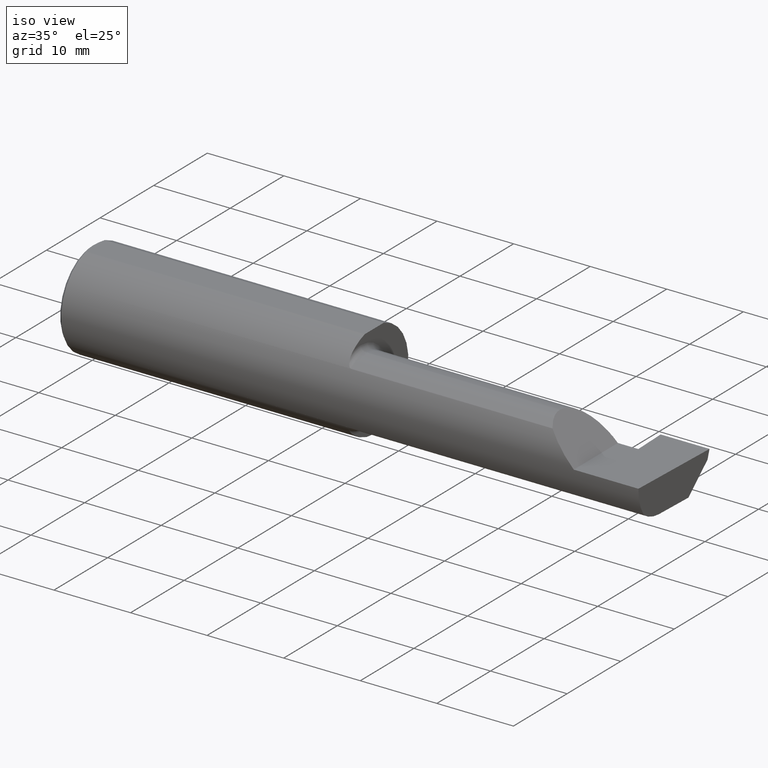
[diagram: clean part render]
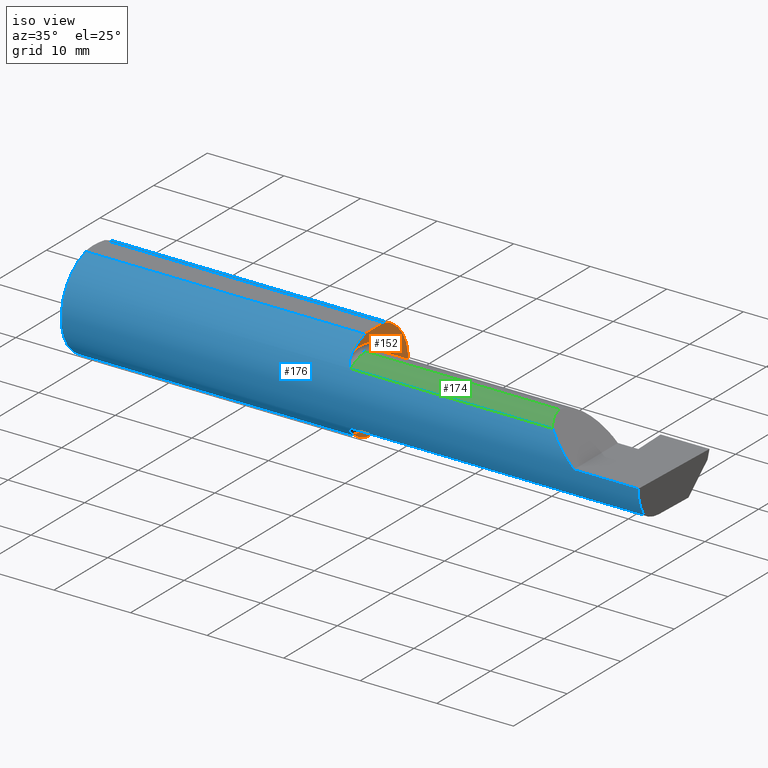
[diagram: same view with three faces highlighted in distinct colors, each labeled with its STEP entity id]
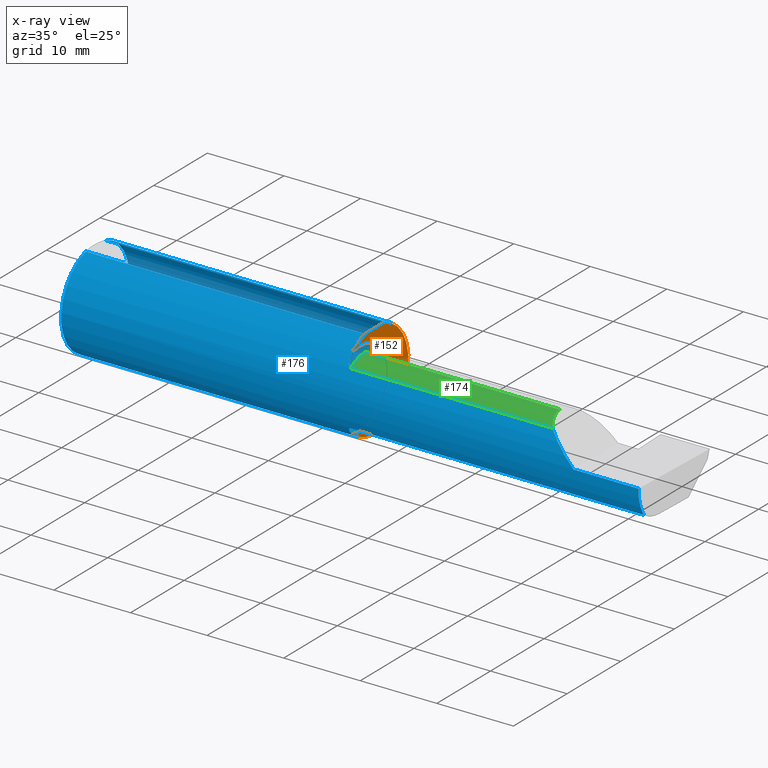
[diagram: x-ray of the same camera — body ghosted, the three highlighted faces saturated]
A machine part, iso view with three faces highlighted in distinct colors.
The next image is the same camera in x-ray (body ghosted, the three faces saturated) — at least one of them is partly hidden behind the body in this view.
Their STEP definitions:

[orange] entity #152 — the highlighted planar face has unit normal (1, 0, 0).
#3 = VERTEX_POINT ( 'NONE', #588 ) ;
#7 = ORIENTED_EDGE ( 'NONE', *, *, #798, .T. ) ;
#29 = EDGE_CURVE ( 'NONE', #142, #716, #241, .T. ) ;
#63 = FACE_OUTER_BOUND ( 'NONE', #580, .T. ) ;
#75 = DIRECTION ( 'NONE',  ( -1.000000000000000000, -0.000000000000000000, -0.000000000000000000 ) ) ;
#79 = CARTESIAN_POINT ( 'NONE',  ( 1.449999999999999512, -0.1616050818046604332, 0.1905487340154980169 ) ) ;
#80 = CIRCLE ( 'NONE', #326, 0.1999999999999999833 ) ;
#81 = CARTESIAN_POINT ( 'NONE',  ( 1.450000000000000178, -0.2498499999999999888, 0.2398500000000000076 ) ) ;
#84 = AXIS2_PLACEMENT_3D ( 'NONE', #255, #495, #419 ) ;
#94 = AXIS2_PLACEMENT_3D ( 'NONE', #284, #470, #347 ) ;
#107 = EDGE_CURVE ( 'NONE', #3, #262, #511, .T. ) ;
#129 = CARTESIAN_POINT ( 'NONE',  ( 1.450000000000000178, 0.06997856814768360634, 0.2398500000000000076 ) ) ;
#141 = CARTESIAN_POINT ( 'NONE',  ( 1.449999999999999512, -0.1616050818046604332, -0.1905487340154980169 ) ) ;
#142 = VERTEX_POINT ( 'NONE', #429 ) ;
#152 = ADVANCED_FACE ( 'NONE', ( #63 ), #536, .T. ) ;
#192 = CARTESIAN_POINT ( 'NONE',  ( 1.449999999999999734, -0.1008499999999999674, 0.000000000000000000 ) ) ;
#198 = VECTOR ( 'NONE', #450, 39.37007874015748143 ) ;
#210 = AXIS2_PLACEMENT_3D ( 'NONE', #363, #298, #492 ) ;
#241 = CIRCLE ( 'NONE', #94, 0.2498499999999999888 ) ;
#255 = CARTESIAN_POINT ( 'NONE',  ( 1.450000000000000178, 0.2741499999999998938, 0.000000000000000000 ) ) ;
#262 = VERTEX_POINT ( 'NONE', #141 ) ;
#284 = CARTESIAN_POINT ( 'NONE',  ( 1.450000000000000178, 0.000000000000000000, 0.000000000000000000 ) ) ;
#298 = DIRECTION ( 'NONE',  ( -1.000000000000000000, -0.000000000000000000, -0.000000000000000000 ) ) ;
#301 = CIRCLE ( 'NONE', #711, 0.1999999999999999833 ) ;
#302 = EDGE_CURVE ( 'NONE', #142, #686, #501, .T. ) ;
#326 = AXIS2_PLACEMENT_3D ( 'NONE', #355, #454, #718 ) ;
#327 = ORIENTED_EDGE ( 'NONE', *, *, #784, .T. ) ;
#347 = DIRECTION ( 'NONE',  ( 0.000000000000000000, 0.000000000000000000, -1.000000000000000000 ) ) ;
#350 = CARTESIAN_POINT ( 'NONE',  ( 1.450000000000000178, 0.000000000000000000, 0.000000000000000000 ) ) ;
#355 = CARTESIAN_POINT ( 'NONE',  ( 1.449999999999999734, -0.1008499999999999674, 0.000000000000000000 ) ) ;
#363 = CARTESIAN_POINT ( 'NONE',  ( 1.449999999999999734, -0.1008499999999999674, 0.000000000000000000 ) ) ;
#398 = EDGE_CURVE ( 'NONE', #572, #3, #80, .T. ) ;
#404 = ORIENTED_EDGE ( 'NONE', *, *, #107, .T. ) ;
#419 = DIRECTION ( 'NONE',  ( 0.000000000000000000, 0.000000000000000000, -1.000000000000000000 ) ) ;
#429 = CARTESIAN_POINT ( 'NONE',  ( 1.450000000000000178, -0.06997856814768374512, 0.2398500000000000076 ) ) ;
#438 = ORIENTED_EDGE ( 'NONE', *, *, #302, .F. ) ;
#448 = ORIENTED_EDGE ( 'NONE', *, *, #29, .T. ) ;
#450 = DIRECTION ( 'NONE',  ( -0.000000000000000000, 1.000000000000000000, 0.000000000000000000 ) ) ;
#454 = DIRECTION ( 'NONE',  ( -1.000000000000000000, -0.000000000000000000, -0.000000000000000000 ) ) ;
#470 = DIRECTION ( 'NONE',  ( 1.000000000000000000, 0.000000000000000000, 0.000000000000000000 ) ) ;
#492 = DIRECTION ( 'NONE',  ( 0.000000000000000000, 0.000000000000000000, 1.000000000000000000 ) ) ;
#495 = DIRECTION ( 'NONE',  ( 1.000000000000000000, 0.000000000000000000, 0.000000000000000000 ) ) ;
#501 = LINE ( 'NONE', #81, #198 ) ;
#504 = CIRCLE ( 'NONE', #569, 0.2498499999999999888 ) ;
#511 = CIRCLE ( 'NONE', #210, 0.1999999999999999833 ) ;
#512 = DIRECTION ( 'NONE',  ( 0.000000000000000000, 0.000000000000000000, -1.000000000000000000 ) ) ;
#536 = PLANE ( 'NONE',  #84 ) ;
#569 = AXIS2_PLACEMENT_3D ( 'NONE', #350, #700, #512 ) ;
#572 = VERTEX_POINT ( 'NONE', #607 ) ;
#580 = EDGE_LOOP ( 'NONE', ( #7, #438, #448, #327, #634, #404 ) ) ;
#588 = CARTESIAN_POINT ( 'NONE',  ( 1.449999999999999734, -0.1008499999999999536, -0.1999999999999999833 ) ) ;
#607 = CARTESIAN_POINT ( 'NONE',  ( 1.449999999999999734, -0.1008499999999999674, 0.1999999999999999833 ) ) ;
#616 = DIRECTION ( 'NONE',  ( 0.000000000000000000, 0.000000000000000000, 1.000000000000000000 ) ) ;
#634 = ORIENTED_EDGE ( 'NONE', *, *, #398, .T. ) ;
#686 = VERTEX_POINT ( 'NONE', #129 ) ;
#700 = DIRECTION ( 'NONE',  ( 1.000000000000000000, 0.000000000000000000, 0.000000000000000000 ) ) ;
#711 = AXIS2_PLACEMENT_3D ( 'NONE', #192, #75, #616 ) ;
#716 = VERTEX_POINT ( 'NONE', #79 ) ;
#718 = DIRECTION ( 'NONE',  ( 0.000000000000000000, 0.000000000000000000, 1.000000000000000000 ) ) ;
#784 = EDGE_CURVE ( 'NONE', #716, #572, #301, .T. ) ;
#798 = EDGE_CURVE ( 'NONE', #262, #686, #504, .T. ) ;

[blue] entity #176 — the highlighted cylindrical surface (partial cylindrical patch) has radius 6.3462 mm, axis along (-1, -0, -0).
#9 = DIRECTION ( 'NONE',  ( -1.000000000000000000, -0.000000000000000000, -0.000000000000000000 ) ) ;
#13 = VERTEX_POINT ( 'NONE', #46 ) ;
#21 = ORIENTED_EDGE ( 'NONE', *, *, #312, .F. ) ;
#29 = EDGE_CURVE ( 'NONE', #142, #716, #241, .T. ) ;
#35 = EDGE_LOOP ( 'NONE', ( #630, #674, #399, #400, #204, #279, #621, #473, #21, #704, #353, #234, #321, #349 ) ) ;
#40 = CARTESIAN_POINT ( 'NONE',  ( 2.650000000000000355, -0.2498499999999999610, 4.286263797015727350E-17 ) ) ;
#46 = CARTESIAN_POINT ( 'NONE',  ( 1.474999999999999867, -0.2080850024789291375, -0.1382955322609665805 ) ) ;
#52 = LINE ( 'NONE', #729, #167 ) ;
#53 = FACE_OUTER_BOUND ( 'NONE', #35, .T. ) ;
#56 = CARTESIAN_POINT ( 'NONE',  ( 1.458182335268384477, -0.1972192205116132246, 0.1535061413537207875 ) ) ;
#58 = CARTESIAN_POINT ( 'NONE',  ( 1.462579853086619641, -0.2024300470081738523, -0.1464774911482681630 ) ) ;
#60 = CARTESIAN_POINT ( 'NONE',  ( 1.467647060162628136, -0.2062109266231183791, 0.1410799729252287249 ) ) ;
#64 = B_SPLINE_CURVE_WITH_KNOTS ( 'NONE', 3,
 ( #602, #127, #360, #660, #297, #420, #58, #115, #306, #547, #478, #362 ),
 .UNSPECIFIED., .F., .F.,
 ( 4, 2, 2, 2, 2, 4 ),
 ( 1.964491429042083594E-07, 0.0001260981470478296940, 0.0002519998449527552082, 0.0005038032407626194097, 0.001007410032382347271, 0.002014623615621798872 ),
 .UNSPECIFIED. ) ;
#66 = DIRECTION ( 'NONE',  ( 0.000000000000000000, 0.000000000000000000, 1.000000000000000000 ) ) ;
#70 = CARTESIAN_POINT ( 'NONE',  ( 2.511704467739034552, -0.2080850024789292485, 0.1382955322609664139 ) ) ;
#76 = DIRECTION ( 'NONE',  ( 0.000000000000000000, 0.000000000000000000, 1.000000000000000000 ) ) ;
#79 = CARTESIAN_POINT ( 'NONE',  ( 1.449999999999999512, -0.1616050818046604332, 0.1905487340154980169 ) ) ;
#91 = EDGE_CURVE ( 'NONE', #716, #455, #334, .T. ) ;
#94 = AXIS2_PLACEMENT_3D ( 'NONE', #284, #470, #347 ) ;
#113 = CARTESIAN_POINT ( 'NONE',  ( 1.451849548162864600, -0.1805300287242675439, 0.1728462070311779508 ) ) ;
#115 = CARTESIAN_POINT ( 'NONE',  ( 1.458176740666625282, -0.1972027065478075825, -0.1535263573771911139 ) ) ;
#127 = CARTESIAN_POINT ( 'NONE',  ( 1.473318040126429640, -0.2080850024789293040, -0.1382955322609664139 ) ) ;
#129 = CARTESIAN_POINT ( 'NONE',  ( 1.450000000000000178, 0.06997856814768360634, 0.2398500000000000076 ) ) ;
#134 = CIRCLE ( 'NONE', #579, 0.2498499999999999888 ) ;
#141 = CARTESIAN_POINT ( 'NONE',  ( 1.449999999999999512, -0.1616050818046604332, -0.1905487340154980169 ) ) ;
#142 = VERTEX_POINT ( 'NONE', #429 ) ;
#157 = VERTEX_POINT ( 'NONE', #361 ) ;
#167 = VECTOR ( 'NONE', #294, 39.37007874015748143 ) ;
#176 = ADVANCED_FACE ( 'NONE', ( #53 ), #300, .T. ) ;
#181 = DIRECTION ( 'NONE',  ( 1.000000000000000000, 0.000000000000000000, 0.000000000000000000 ) ) ;
#193 = EDGE_CURVE ( 'NONE', #507, #157, #394, .T. ) ;
#201 = VECTOR ( 'NONE', #9, 39.37007874015748143 ) ;
#204 = ORIENTED_EDGE ( 'NONE', *, *, #91, .F. ) ;
#205 = LINE ( 'NONE', #739, #201 ) ;
#211 = DIRECTION ( 'NONE',  ( 0.02616100201822768243, -0.0009135623211515302069, 0.9996573249755575929 ) ) ;
#213 = CARTESIAN_POINT ( 'NONE',  ( 2.980479240051444378, -0.2080850024789291652, -0.1382955322609665250 ) ) ;
#225 = VERTEX_POINT ( 'NONE', #70 ) ;
#232 = AXIS2_PLACEMENT_3D ( 'NONE', #541, #788, #488 ) ;
#234 = ORIENTED_EDGE ( 'NONE', *, *, #537, .F. ) ;
#241 = CIRCLE ( 'NONE', #94, 0.2498499999999999888 ) ;
#242 = CARTESIAN_POINT ( 'NONE',  ( 2.112000000000000099, -0.2080850024789291652, 0.1382955322609665250 ) ) ;
#246 = CARTESIAN_POINT ( 'NONE',  ( 2.980602402804240381, -0.2354324170447371078, -0.09714751587400052846 ) ) ;
#250 = CARTESIAN_POINT ( 'NONE',  ( 1.449999999999999512, -0.1616050818046604332, 0.1905487340154980169 ) ) ;
#254 = CARTESIAN_POINT ( 'NONE',  ( 2.511704467739034552, -0.2080850024789292485, 0.1382955322609664139 ) ) ;
#262 = VERTEX_POINT ( 'NONE', #141 ) ;
#267 = VECTOR ( 'NONE', #181, 39.37007874015748143 ) ;
#276 = VERTEX_POINT ( 'NONE', #447 ) ;
#279 = ORIENTED_EDGE ( 'NONE', *, *, #29, .F. ) ;
#284 = CARTESIAN_POINT ( 'NONE',  ( 1.450000000000000178, 0.000000000000000000, 0.000000000000000000 ) ) ;
#292 = CARTESIAN_POINT ( 'NONE',  ( 1.474999999999999867, -0.2080850024789292485, 0.1382955322609664972 ) ) ;
#294 = DIRECTION ( 'NONE',  ( -1.000000000000000000, -0.000000000000000000, -0.000000000000000000 ) ) ;
#297 = CARTESIAN_POINT ( 'NONE',  ( 1.467611663768900065, -0.2061921161193832619, -0.1411075319999373079 ) ) ;
#299 = LINE ( 'NONE', #544, #648 ) ;
#300 = CYLINDRICAL_SURFACE ( 'NONE', #232, 0.2498499999999999888 ) ;
#304 = CARTESIAN_POINT ( 'NONE',  ( 2.982644377562602589, -0.2498499999999999610, 1.813681607540488003E-17 ) ) ;
#305 = CARTESIAN_POINT ( 'NONE',  ( 1.452968662030528657, -0.1849684355203378705, 0.1680843977756266150 ) ) ;
#306 = CARTESIAN_POINT ( 'NONE',  ( 1.456147634408387903, -0.1932733126899463250, -0.1584637047788194641 ) ) ;
#310 = EDGE_CURVE ( 'NONE', #276, #637, #683, .T. ) ;
#312 = EDGE_CURVE ( 'NONE', #395, #507, #134, .T. ) ;
#317 = CARTESIAN_POINT ( 'NONE',  ( 2.650000000000000355, -0.2498499999999999610, 4.286263797015727350E-17 ) ) ;
#321 = ORIENTED_EDGE ( 'NONE', *, *, #534, .F. ) ;
#334 = B_SPLINE_CURVE_WITH_KNOTS ( 'NONE', 3,
 ( #250, #548, #490, #113, #305, #608, #56, #732, #551, #60, #666, #670, #793, #599 ),
 .UNSPECIFIED., .F., .F.,
 ( 4, 2, 2, 2, 2, 2, 4 ),
 ( 0.0003834465838148173595, 0.0008781406165086639085, 0.001372834649202510403, 0.001867528681896358633, 0.002114875698243288710, 0.002238549206416759821, 0.002362222714590230931 ),
 .UNSPECIFIED. ) ;
#337 = CARTESIAN_POINT ( 'NONE',  ( 2.977412177158956563, -0.2496672875357696664, -0.1999314649951114686 ) ) ;
#347 = DIRECTION ( 'NONE',  ( 0.000000000000000000, 0.000000000000000000, -1.000000000000000000 ) ) ;
#349 = ORIENTED_EDGE ( 'NONE', *, *, #619, .T. ) ;
#350 = CARTESIAN_POINT ( 'NONE',  ( 1.450000000000000178, 0.000000000000000000, 0.000000000000000000 ) ) ;
#353 = ORIENTED_EDGE ( 'NONE', *, *, #798, .F. ) ;
#360 = CARTESIAN_POINT ( 'NONE',  ( 1.471700027347579320, -0.2077785947292770385, -0.1387580622202821967 ) ) ;
#361 = CARTESIAN_POINT ( 'NONE',  ( 0.01499999999999999944, -0.06997856814768359246, 0.2398500000000000076 ) ) ;
#362 = CARTESIAN_POINT ( 'NONE',  ( 1.449999999999999512, -0.1616050818046604332, -0.1905487340154980169 ) ) ;
#368 = VECTOR ( 'NONE', #491, 39.37007874015748143 ) ;
#371 = DIRECTION ( 'NONE',  ( 1.000000000000000000, 0.000000000000000000, 0.000000000000000000 ) ) ;
#384 = DIRECTION ( 'NONE',  ( -1.000000000000000000, -0.000000000000000000, -0.000000000000000000 ) ) ;
#394 = CIRCLE ( 'NONE', #494, 0.2498499999999999888 ) ;
#395 = VERTEX_POINT ( 'NONE', #696 ) ;
#399 = ORIENTED_EDGE ( 'NONE', *, *, #760, .T. ) ;
#400 = ORIENTED_EDGE ( 'NONE', *, *, #597, .F. ) ;
#409 =( BOUNDED_CURVE ( )  B_SPLINE_CURVE ( 3, ( #785, #246, #487, #725 ),
 .UNSPECIFIED., .F., .T. ) 
 B_SPLINE_CURVE_WITH_KNOTS ( ( 4, 4 ),
 ( 0.05713034791898981279, 0.6418805321924385687 ),
 .UNSPECIFIED. ) 
 CURVE ( )  GEOMETRIC_REPRESENTATION_ITEM ( )  RATIONAL_B_SPLINE_CURVE ( ( 1.000000000000000000, 0.9717080070095358568, 0.9717080070095358568, 1.000000000000000000 ) ) 
 REPRESENTATION_ITEM ( '' )  );
#411 = VERTEX_POINT ( 'NONE', #40 ) ;
#420 = CARTESIAN_POINT ( 'NONE',  ( 1.464302603425052363, -0.2041009206016216326, -0.1441313430770035930 ) ) ;
#423 = LINE ( 'NONE', #242, #267 ) ;
#429 = CARTESIAN_POINT ( 'NONE',  ( 1.450000000000000178, -0.06997856814768374512, 0.2398500000000000076 ) ) ;
#434 = CARTESIAN_POINT ( 'NONE',  ( 2.600434159100403875, -0.2498499999999999055, 0.04956584089959691769 ) ) ;
#446 = CARTESIAN_POINT ( 'NONE',  ( 2.552984868485333347, -0.2355204011147992438, 0.09701513151466735485 ) ) ;
#447 = CARTESIAN_POINT ( 'NONE',  ( 2.982632426700503103, -0.2498495826666993769, -0.0004566631977228521443 ) ) ;
#455 = VERTEX_POINT ( 'NONE', #292 ) ;
#470 = DIRECTION ( 'NONE',  ( 1.000000000000000000, 0.000000000000000000, 0.000000000000000000 ) ) ;
#473 = ORIENTED_EDGE ( 'NONE', *, *, #193, .F. ) ;
#478 = CARTESIAN_POINT ( 'NONE',  ( 1.450000000000000178, -0.1716188362992556171, -0.1820560320165479362 ) ) ;
#481 = VECTOR ( 'NONE', #211, 39.37007874015748854 ) ;
#487 = CARTESIAN_POINT ( 'NONE',  ( 2.981341028891338674, -0.2497592792593448796, -0.04986346618385834734 ) ) ;
#488 = DIRECTION ( 'NONE',  ( 0.000000000000000000, 0.000000000000000000, 1.000000000000000000 ) ) ;
#490 = CARTESIAN_POINT ( 'NONE',  ( 1.450367168219774294, -0.1713400252854604677, 0.1819601557798505576 ) ) ;
#491 = DIRECTION ( 'NONE',  ( -1.000000000000000000, -0.000000000000000000, -0.000000000000000000 ) ) ;
#494 = AXIS2_PLACEMENT_3D ( 'NONE', #623, #679, #66 ) ;
#504 = CIRCLE ( 'NONE', #569, 0.2498499999999999888 ) ;
#507 = VERTEX_POINT ( 'NONE', #521 ) ;
#512 = DIRECTION ( 'NONE',  ( 0.000000000000000000, 0.000000000000000000, -1.000000000000000000 ) ) ;
#514 = VERTEX_POINT ( 'NONE', #213 ) ;
#520 =( BOUNDED_CURVE ( )  B_SPLINE_CURVE ( 3, ( #317, #434, #446, #254 ),
 .UNSPECIFIED., .F., .T. ) 
 B_SPLINE_CURVE_WITH_KNOTS ( ( 4, 4 ),
 ( 4.712388980384689674, 5.298966915116346321 ),
 .UNSPECIFIED. ) 
 CURVE ( )  GEOMETRIC_REPRESENTATION_ITEM ( )  RATIONAL_B_SPLINE_CURVE ( ( 1.000000000000000000, 0.9715321379117538569, 0.9715321379117538569, 1.000000000000000000 ) ) 
 REPRESENTATION_ITEM ( '' )  );
#521 = CARTESIAN_POINT ( 'NONE',  ( 0.01499999999999999944, 0.000000000000000000, -0.2498499999999999888 ) ) ;
#534 = EDGE_CURVE ( 'NONE', #514, #13, #665, .T. ) ;
#537 = EDGE_CURVE ( 'NONE', #13, #262, #64, .T. ) ;
#541 = CARTESIAN_POINT ( 'NONE',  ( 0.000000000000000000, 0.000000000000000000, 0.000000000000000000 ) ) ;
#544 = CARTESIAN_POINT ( 'NONE',  ( 0.000000000000000000, -0.06997856814768359246, 0.2398500000000000076 ) ) ;
#547 = CARTESIAN_POINT ( 'NONE',  ( 1.451385488563269988, -0.1808287530430326417, -0.1728790649396285961 ) ) ;
#548 = CARTESIAN_POINT ( 'NONE',  ( 1.449999999999999512, -0.1665641037263009272, 0.1863429692936361404 ) ) ;
#551 = CARTESIAN_POINT ( 'NONE',  ( 1.464343523383979218, -0.2041337200786085826, 0.1440846171672508780 ) ) ;
#569 = AXIS2_PLACEMENT_3D ( 'NONE', #350, #700, #512 ) ;
#579 = AXIS2_PLACEMENT_3D ( 'NONE', #692, #384, #76 ) ;
#597 = EDGE_CURVE ( 'NONE', #455, #225, #423, .T. ) ;
#599 = CARTESIAN_POINT ( 'NONE',  ( 1.474999999999999867, -0.2080850024789292485, 0.1382955322609664972 ) ) ;
#602 = CARTESIAN_POINT ( 'NONE',  ( 1.474999999999999867, -0.2080850024789291375, -0.1382955322609665805 ) ) ;
#606 = EDGE_CURVE ( 'NONE', #686, #395, #52, .T. ) ;
#608 = CARTESIAN_POINT ( 'NONE',  ( 1.456159563508734101, -0.1933019864360850659, 0.1584298865564829906 ) ) ;
#617 = EDGE_CURVE ( 'NONE', #157, #142, #299, .T. ) ;
#619 = EDGE_CURVE ( 'NONE', #514, #276, #409, .T. ) ;
#621 = ORIENTED_EDGE ( 'NONE', *, *, #617, .F. ) ;
#623 = CARTESIAN_POINT ( 'NONE',  ( 0.01499999999999999944, 0.000000000000000000, 0.000000000000000000 ) ) ;
#630 = ORIENTED_EDGE ( 'NONE', *, *, #310, .T. ) ;
#637 = VERTEX_POINT ( 'NONE', #304 ) ;
#648 = VECTOR ( 'NONE', #371, 39.37007874015748143 ) ;
#660 = CARTESIAN_POINT ( 'NONE',  ( 1.468863362722770516, -0.2068301641248772860, -0.1401678546132356651 ) ) ;
#665 = LINE ( 'NONE', #781, #368 ) ;
#666 = CARTESIAN_POINT ( 'NONE',  ( 1.468876997637615034, -0.2068363917296602850, 0.1401586554522225858 ) ) ;
#670 = CARTESIAN_POINT ( 'NONE',  ( 1.471718393013768722, -0.2077830475237244512, 0.1387513848711933173 ) ) ;
#674 = ORIENTED_EDGE ( 'NONE', *, *, #703, .T. ) ;
#679 = DIRECTION ( 'NONE',  ( -1.000000000000000000, -0.000000000000000000, -0.000000000000000000 ) ) ;
#683 = LINE ( 'NONE', #337, #481 ) ;
#686 = VERTEX_POINT ( 'NONE', #129 ) ;
#692 = CARTESIAN_POINT ( 'NONE',  ( 0.01499999999999999944, 0.000000000000000000, 0.000000000000000000 ) ) ;
#696 = CARTESIAN_POINT ( 'NONE',  ( 0.01499999999999998036, 0.06997856814768359246, 0.2398500000000000076 ) ) ;
#700 = DIRECTION ( 'NONE',  ( 1.000000000000000000, 0.000000000000000000, 0.000000000000000000 ) ) ;
#703 = EDGE_CURVE ( 'NONE', #637, #411, #205, .T. ) ;
#704 = ORIENTED_EDGE ( 'NONE', *, *, #606, .F. ) ;
#716 = VERTEX_POINT ( 'NONE', #79 ) ;
#725 = CARTESIAN_POINT ( 'NONE',  ( 2.982632426700503103, -0.2498495826666993769, -0.0004566631977228521443 ) ) ;
#729 = CARTESIAN_POINT ( 'NONE',  ( 0.000000000000000000, 0.06997856814768359246, 0.2398500000000000076 ) ) ;
#732 = CARTESIAN_POINT ( 'NONE',  ( 1.462616400345755574, -0.2024684335577104644, 0.1464246884265635595 ) ) ;
#739 = CARTESIAN_POINT ( 'NONE',  ( 4.499279347985559139E-32, -0.2498499999999999610, 3.673940397442053459E-16 ) ) ;
#760 = EDGE_CURVE ( 'NONE', #411, #225, #520, .T. ) ;
#781 = CARTESIAN_POINT ( 'NONE',  ( 2.112000000000000099, -0.2080850024789291652, -0.1382955322609665250 ) ) ;
#785 = CARTESIAN_POINT ( 'NONE',  ( 2.980479240051444378, -0.2080850024789291652, -0.1382955322609665250 ) ) ;
#788 = DIRECTION ( 'NONE',  ( -1.000000000000000000, -0.000000000000000000, -0.000000000000000000 ) ) ;
#793 = CARTESIAN_POINT ( 'NONE',  ( 1.473329956043142319, -0.2080850024798593101, 0.1382955322595671999 ) ) ;
#798 = EDGE_CURVE ( 'NONE', #262, #686, #504, .T. ) ;

[green] entity #174 — the highlighted cylindrical surface (partial cylindrical patch) has radius 4.445 mm, axis along (-1, -0, -0).
#18 =( BOUNDED_CURVE ( )  B_SPLINE_CURVE ( 3, ( #418, #369, #535, #121 ),
 .UNSPECIFIED., .F., .T. ) 
 B_SPLINE_CURVE_WITH_KNOTS ( ( 4, 4 ),
 ( 5.623622464215678463, 6.283185307179586232 ),
 .UNSPECIFIED. ) 
 CURVE ( )  GEOMETRIC_REPRESENTATION_ITEM ( )  RATIONAL_B_SPLINE_CURVE ( ( 1.000000000000000000, 0.9640754331822828371, 0.9640754331822828371, 1.000000000000000000 ) ) 
 REPRESENTATION_ITEM ( '' )  );
#28 = VERTEX_POINT ( 'NONE', #771 ) ;
#32 = AXIS2_PLACEMENT_3D ( 'NONE', #346, #581, #283 ) ;
#68 = ORIENTED_EDGE ( 'NONE', *, *, #295, .T. ) ;
#70 = CARTESIAN_POINT ( 'NONE',  ( 2.511704467739034552, -0.2080850024789292485, 0.1382955322609664139 ) ) ;
#106 = VERTEX_POINT ( 'NONE', #128 ) ;
#119 = CARTESIAN_POINT ( 'NONE',  ( 1.450000000000000178, -0.1008499999999999674, 0.000000000000000000 ) ) ;
#121 = CARTESIAN_POINT ( 'NONE',  ( 2.475000000000001421, -0.1008499999999999674, 0.1749999999999999889 ) ) ;
#128 = CARTESIAN_POINT ( 'NONE',  ( 1.474999999999999867, -0.1008499999999999674, 0.1749999999999999889 ) ) ;
#137 = ORIENTED_EDGE ( 'NONE', *, *, #549, .T. ) ;
#170 = EDGE_LOOP ( 'NONE', ( #137, #68, #528, #705 ) ) ;
#174 = ADVANCED_FACE ( 'NONE', ( #421 ), #661, .T. ) ;
#181 = DIRECTION ( 'NONE',  ( 1.000000000000000000, 0.000000000000000000, 0.000000000000000000 ) ) ;
#225 = VERTEX_POINT ( 'NONE', #70 ) ;
#242 = CARTESIAN_POINT ( 'NONE',  ( 2.112000000000000099, -0.2080850024789291652, 0.1382955322609665250 ) ) ;
#247 = DIRECTION ( 'NONE',  ( -1.000000000000000000, -0.000000000000000000, -0.000000000000000000 ) ) ;
#261 = CARTESIAN_POINT ( 'NONE',  ( 1.450000000000000178, -0.1008499999999999674, 0.1749999999999999889 ) ) ;
#267 = VECTOR ( 'NONE', #181, 39.37007874015748143 ) ;
#283 = DIRECTION ( 'NONE',  ( 0.000000000000000000, 0.000000000000000000, 1.000000000000000000 ) ) ;
#292 = CARTESIAN_POINT ( 'NONE',  ( 1.474999999999999867, -0.2080850024789292485, 0.1382955322609664972 ) ) ;
#295 = EDGE_CURVE ( 'NONE', #28, #106, #566, .T. ) ;
#303 = CIRCLE ( 'NONE', #32, 0.1749999999999999889 ) ;
#346 = CARTESIAN_POINT ( 'NONE',  ( 1.474999999999999867, -0.1008499999999999674, 0.000000000000000000 ) ) ;
#369 = CARTESIAN_POINT ( 'NONE',  ( 2.487690731615568307, -0.1771157075472510889, 0.1623092683844330197 ) ) ;
#418 = CARTESIAN_POINT ( 'NONE',  ( 2.511704467739034552, -0.2080850024789292485, 0.1382955322609664139 ) ) ;
#421 = FACE_OUTER_BOUND ( 'NONE', #170, .T. ) ;
#423 = LINE ( 'NONE', #242, #267 ) ;
#455 = VERTEX_POINT ( 'NONE', #292 ) ;
#500 = EDGE_CURVE ( 'NONE', #455, #106, #303, .T. ) ;
#528 = ORIENTED_EDGE ( 'NONE', *, *, #500, .F. ) ;
#535 = CARTESIAN_POINT ( 'NONE',  ( 2.475000000000001421, -0.1400387324517231857, 0.1750000000000000167 ) ) ;
#549 = EDGE_CURVE ( 'NONE', #225, #28, #18, .T. ) ;
#554 = DIRECTION ( 'NONE',  ( -1.000000000000000000, -0.000000000000000000, -0.000000000000000000 ) ) ;
#566 = LINE ( 'NONE', #261, #678 ) ;
#581 = DIRECTION ( 'NONE',  ( -1.000000000000000000, -0.000000000000000000, -0.000000000000000000 ) ) ;
#597 = EDGE_CURVE ( 'NONE', #455, #225, #423, .T. ) ;
#601 = DIRECTION ( 'NONE',  ( 0.000000000000000000, 0.000000000000000000, 1.000000000000000000 ) ) ;
#661 = CYLINDRICAL_SURFACE ( 'NONE', #733, 0.1749999999999999889 ) ;
#678 = VECTOR ( 'NONE', #554, 39.37007874015748143 ) ;
#705 = ORIENTED_EDGE ( 'NONE', *, *, #597, .T. ) ;
#733 = AXIS2_PLACEMENT_3D ( 'NONE', #119, #247, #601 ) ;
#771 = CARTESIAN_POINT ( 'NONE',  ( 2.475000000000001421, -0.1008499999999999674, 0.1749999999999999889 ) ) ;